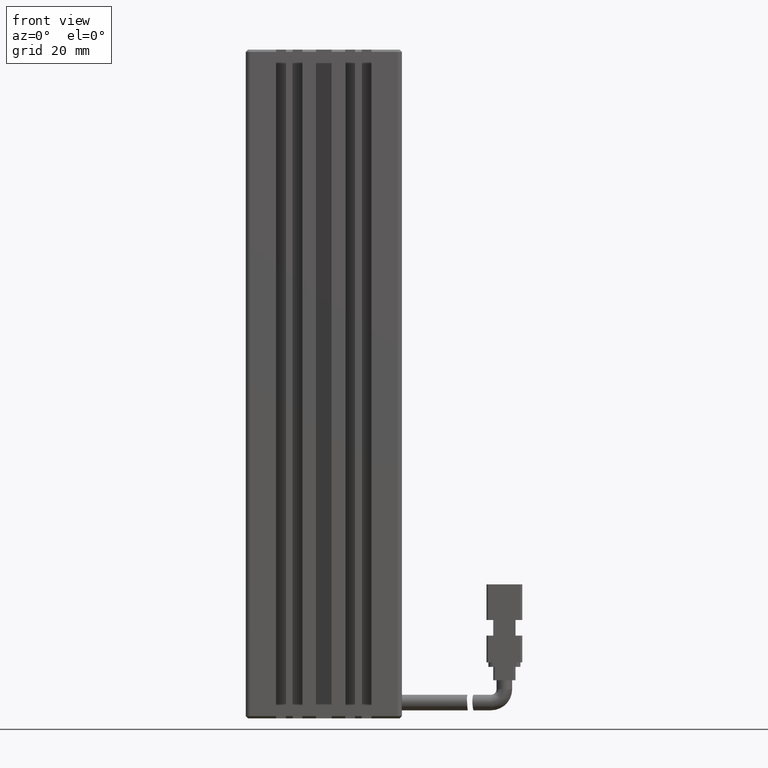
[diagram: clean part render]
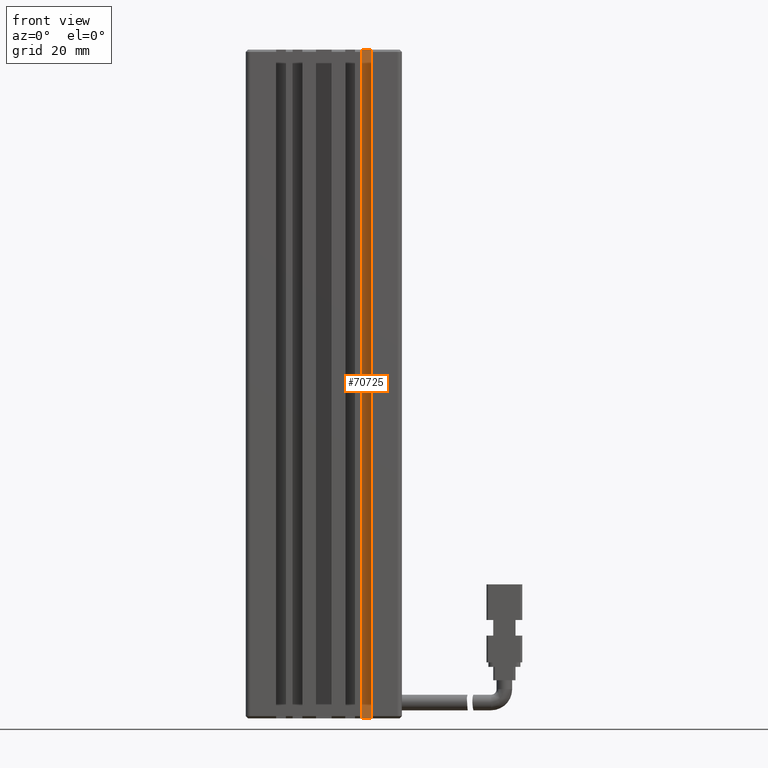
[diagram: same view with one face highlighted and labeled with its STEP entity id]
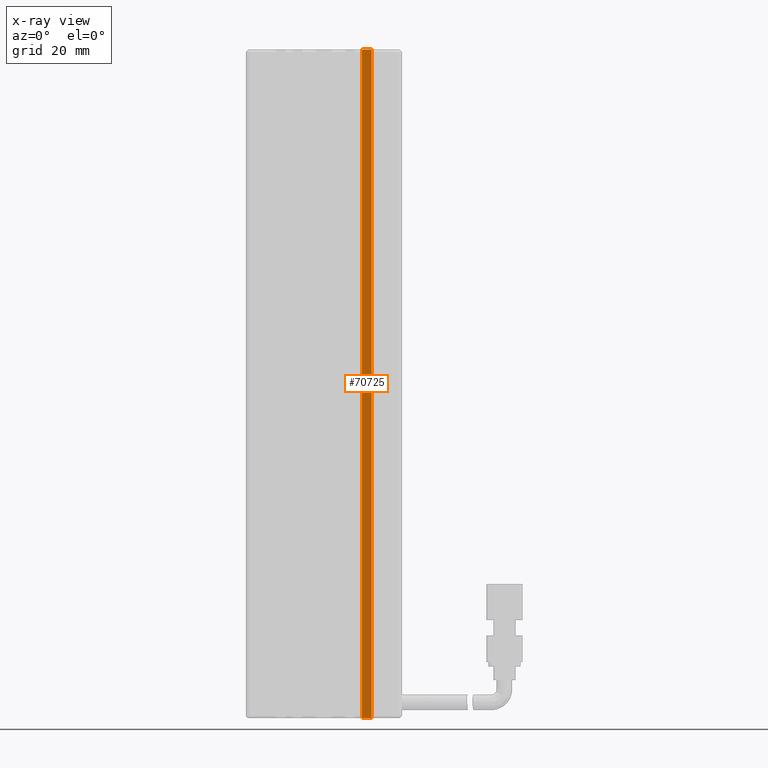
[diagram: x-ray of the same camera — body ghosted, the highlighted face saturated]
A machine part, front view. The second image highlights one B-rep face of the part: STEP entity #70725.
The next image is the same camera in x-ray: the body ghosted, the highlighted face saturated — about 0% of this face is hidden behind the body in this view.
In plain terms, the highlighted planar face has unit normal (0, -1, 0).
Its self-contained STEP definition (entity closure, byte-faithful):
#44 = VECTOR ( 'NONE', #57028, 1000.000000000000000 ) ;
#2638 = FACE_OUTER_BOUND ( 'NONE', #59458, .T. ) ;
#3799 = LINE ( 'NONE', #13947, #11518 ) ;
#5231 = CARTESIAN_POINT ( 'NONE',  ( 49.42537974683541800, 16.49073232304836600, -190.0000000000000000 ) ) ;
#7855 = CARTESIAN_POINT ( 'NONE',  ( 51.62537974683541400, 16.49073232304836600, -40.00000000000000700 ) ) ;
#9625 = PLANE ( 'NONE',  #28220 ) ;
#10285 = EDGE_CURVE ( 'NONE', #13563, #42624, #13695, .T. ) ;
#11518 = VECTOR ( 'NONE', #24936, 1000.000000000000000 ) ;
#11658 = EDGE_CURVE ( 'NONE', #17486, #13563, #3799, .T. ) ;
#13563 = VERTEX_POINT ( 'NONE', #5231 ) ;
#13695 = LINE ( 'NONE', #45195, #20542 ) ;
#13947 = CARTESIAN_POINT ( 'NONE',  ( 49.42537974683541800, 16.49073232304836600, -40.00000000000000700 ) ) ;
#14293 = VERTEX_POINT ( 'NONE', #40753 ) ;
#15509 = ORIENTED_EDGE ( 'NONE', *, *, #45046, .F. ) ;
#17486 = VERTEX_POINT ( 'NONE', #43163 ) ;
#19236 = LINE ( 'NONE', #59734, #56767 ) ;
#20542 = VECTOR ( 'NONE', #66855, 1000.000000000000000 ) ;
#24936 = DIRECTION ( 'NONE',  ( -0.0000000000000000000, -0.0000000000000000000, -1.000000000000000000 ) ) ;
#27342 = ORIENTED_EDGE ( 'NONE', *, *, #10285, .T. ) ;
#28220 = AXIS2_PLACEMENT_3D ( 'NONE', #52598, #42626, #63535 ) ;
#32801 = ORIENTED_EDGE ( 'NONE', *, *, #11658, .T. ) ;
#40753 = CARTESIAN_POINT ( 'NONE',  ( 51.62537974683542100, 16.49073232304836600, -40.00000000000000700 ) ) ;
#42624 = VERTEX_POINT ( 'NONE', #51119 ) ;
#42626 = DIRECTION ( 'NONE',  ( 0.0000000000000000000, -1.000000000000000000, 0.0000000000000000000 ) ) ;
#43163 = CARTESIAN_POINT ( 'NONE',  ( 49.42537974683541800, 16.49073232304836600, -40.00000000000000700 ) ) ;
#45046 = EDGE_CURVE ( 'NONE', #17486, #14293, #19236, .T. ) ;
#45195 = CARTESIAN_POINT ( 'NONE',  ( 40.92537974683542500, 16.49073232304836600, -190.0000000000000000 ) ) ;
#45416 = LINE ( 'NONE', #7855, #44 ) ;
#51119 = CARTESIAN_POINT ( 'NONE',  ( 51.62537974683542100, 16.49073232304836600, -190.0000000000000000 ) ) ;
#52598 = CARTESIAN_POINT ( 'NONE',  ( 40.92537974683542500, 16.49073232304836600, -40.00000000000000700 ) ) ;
#56767 = VECTOR ( 'NONE', #65486, 1000.000000000000000 ) ;
#57028 = DIRECTION ( 'NONE',  ( -0.0000000000000000000, -0.0000000000000000000, -1.000000000000000000 ) ) ;
#59406 = EDGE_CURVE ( 'NONE', #14293, #42624, #45416, .T. ) ;
#59458 = EDGE_LOOP ( 'NONE', ( #15509, #32801, #27342, #63497 ) ) ;
#59734 = CARTESIAN_POINT ( 'NONE',  ( 40.92537974683542500, 16.49073232304836600, -40.00000000000000700 ) ) ;
#63497 = ORIENTED_EDGE ( 'NONE', *, *, #59406, .F. ) ;
#63535 = DIRECTION ( 'NONE',  ( 0.0000000000000000000, -0.0000000000000000000, -1.000000000000000000 ) ) ;
#65486 = DIRECTION ( 'NONE',  ( 1.000000000000000000, 0.0000000000000000000, 0.0000000000000000000 ) ) ;
#66855 = DIRECTION ( 'NONE',  ( 1.000000000000000000, 0.0000000000000000000, 0.0000000000000000000 ) ) ;
#70725 = ADVANCED_FACE ( 'NONE', ( #2638 ), #9625, .T. ) ;